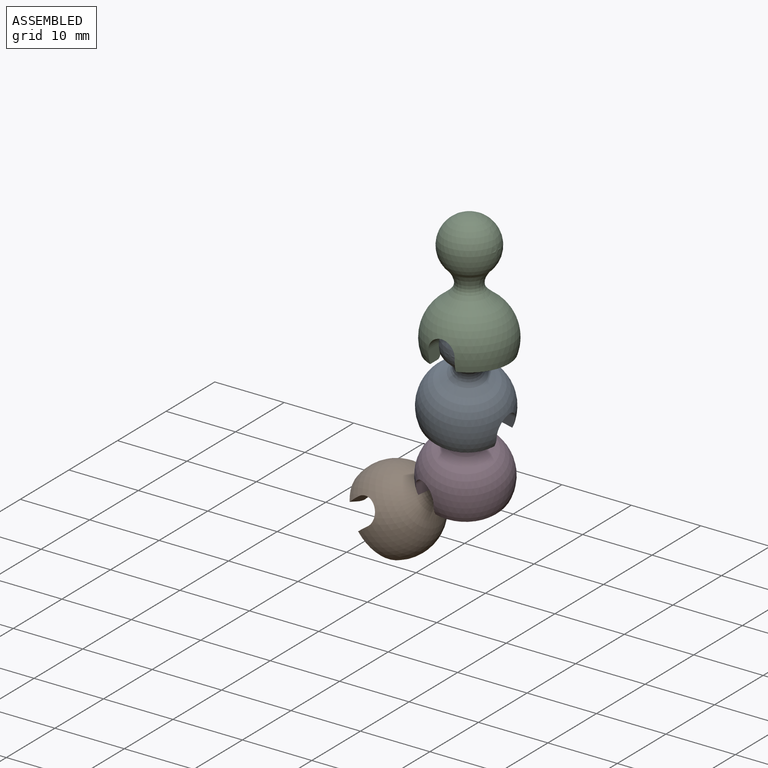
[diagram: assembled view]
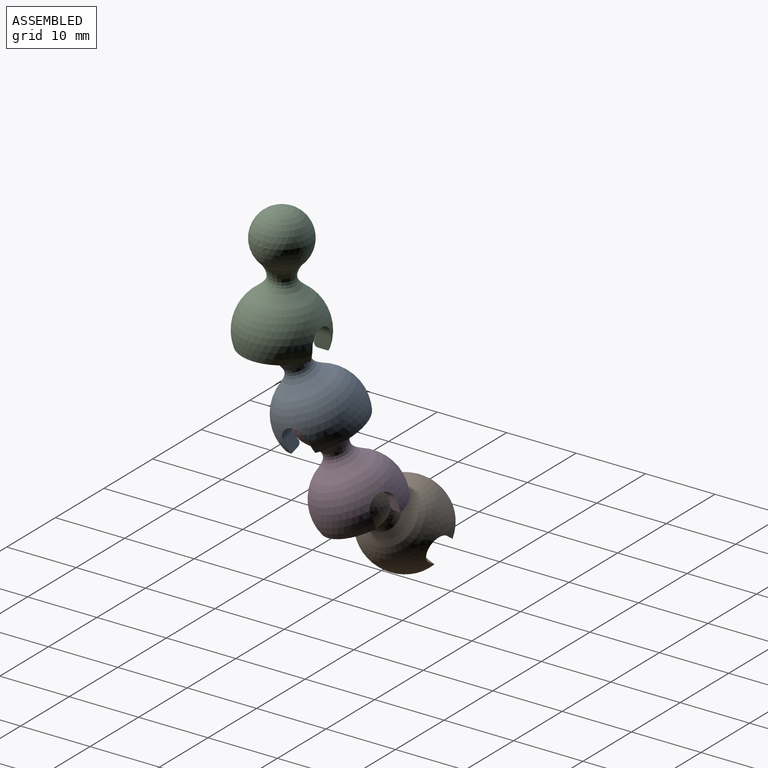
[diagram: assembled view, second angle]
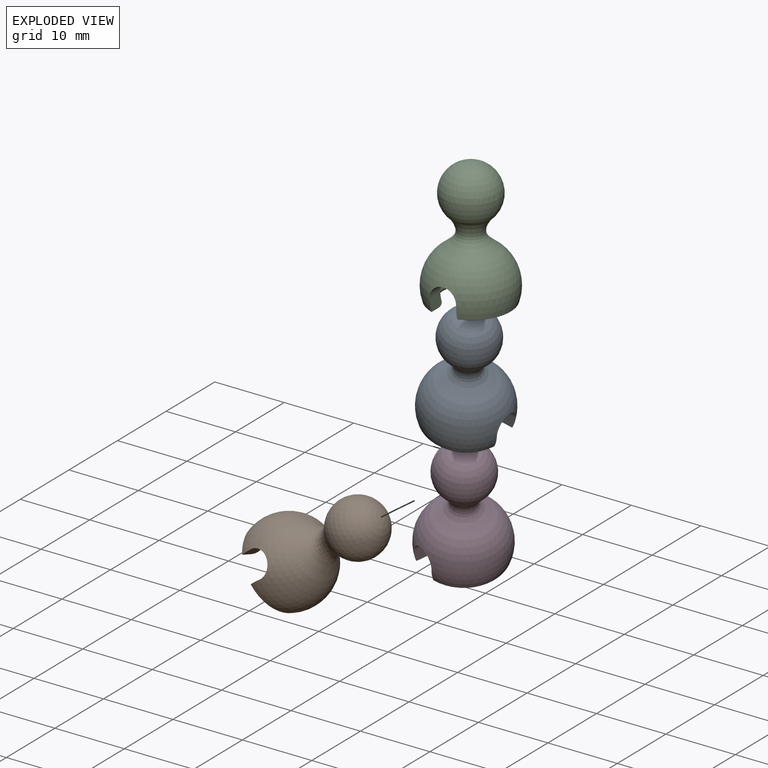
[diagram: exploded view]
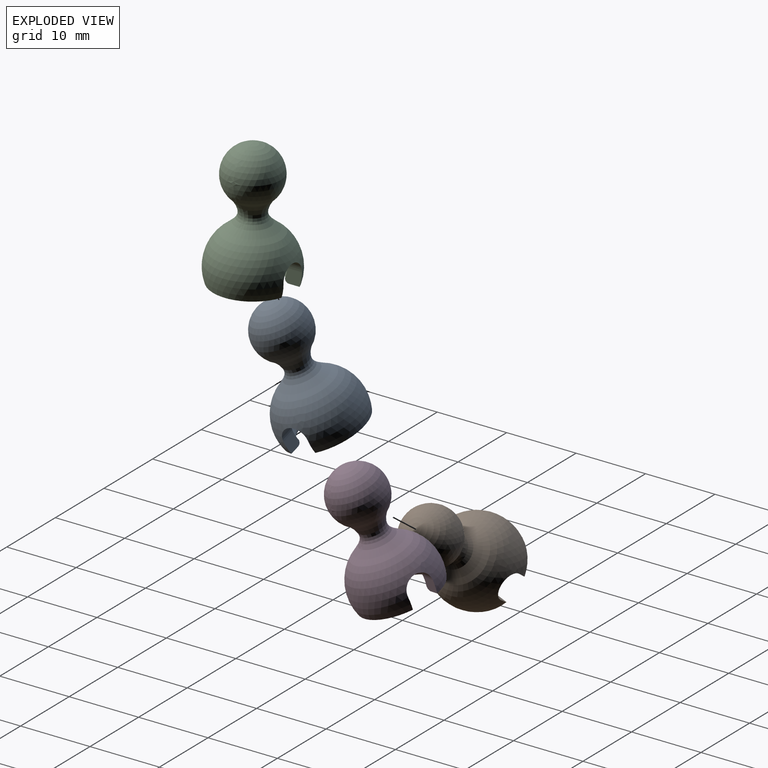
[diagram: exploded view, second angle]
ASSEMBLY  parts=4 mates=3
PART A: 18 faces, bbox 12.1x12.1x18 mm
  f0: plane 10.84x3.88mm, normal (0,0,-1), area 16.9mm2, adj f4,f9,f10,f14
  f1: torus R=4.31mm, axis (0,0,1), area 8.1mm2, adj f2,f3,f11,f15
  f2: sphere r=4.05mm, area 113.5mm2, adj f1,f9,f10,f11,f12,f13,f14,f15
  f3: plane 10.84x3.88mm, normal (0,0,-1), area 16.9mm2, adj f1,f4,f11,f15
  f4: sphere r=6.05mm, area 238.4mm2, adj f0,f3,f5,f10,f11,f12,f13,f14
  f5: revolved ~6.73x6.73mm, area 31mm2, adj f4,f6
  f6: revolved ~4.91x4.91mm, area 33.5mm2, adj f5,f7
  f7: revolved ~5.13x5.13mm, area 3mm2, adj f6,f8
  f8: sphere r=4mm, area 177.6mm2, adj f7
  f9: torus R=4.31mm, axis (0,0,1), area 8.1mm2, adj f0,f2,f10,f14
  f10: plane 2.42x1.9mm, normal (1,0,0.03), area 4.1mm2, adj f0,f2,f4,f9,f12
  f11: plane 2.42x1.9mm, normal (-1,0,0.03), area 4.1mm2, adj f1,f2,f3,f4,f12
  f12: cylinder r=1.9mm len=3.8mm, axis (0,1,0), area 13.2mm2, adj f2,f4,f10,f11
  f13: cylinder r=1.9mm len=3.8mm, axis (0,1,0), area 13.2mm2, adj f2,f4,f14,f15
  f14: plane 2.42x1.9mm, normal (1,0,0.03), area 4.1mm2, adj f0,f2,f4,f9,f13
  f15: plane 2.42x1.9mm, normal (-1,0,0.03), area 4.1mm2, adj f1,f2,f3,f4,f13
  f16: sphere r=6.05mm, area 1.9mm2, adj f17
  f17: sphere r=6.05mm, area 1.9mm2, adj f16
PART B: same geometry as A
PART C: same geometry as A
PART D: same geometry as A
PLACE A rot(axis=(0.03,0.27,-0.96),91.9deg) t=(-2.59,1.83,-9.59)mm
PLACE B rot(axis=(-0.17,0.94,-0.29),57.3deg) t=(-8.18,8.99,-31.8)mm
PLACE C t=(-2.59,1.83,2.41)mm fixed
PLACE D rot(axis=(0.49,0.52,-0.7),30.8deg) t=(-5.54,5.39,-20.66)mm
MATE ball B.f1 <-> D.f1  axis (0.82,0.02,0.58) through (-8.18,8.99,-31.8)mm
MATE ball A.f1 <-> C.f1  axis (0.25,-0.3,0.92) through (-2.59,1.83,-9.59)mm
MATE ball D.f1 <-> A.f1  axis (0.22,-0.3,0.93) through (-5.54,5.39,-20.66)mm
